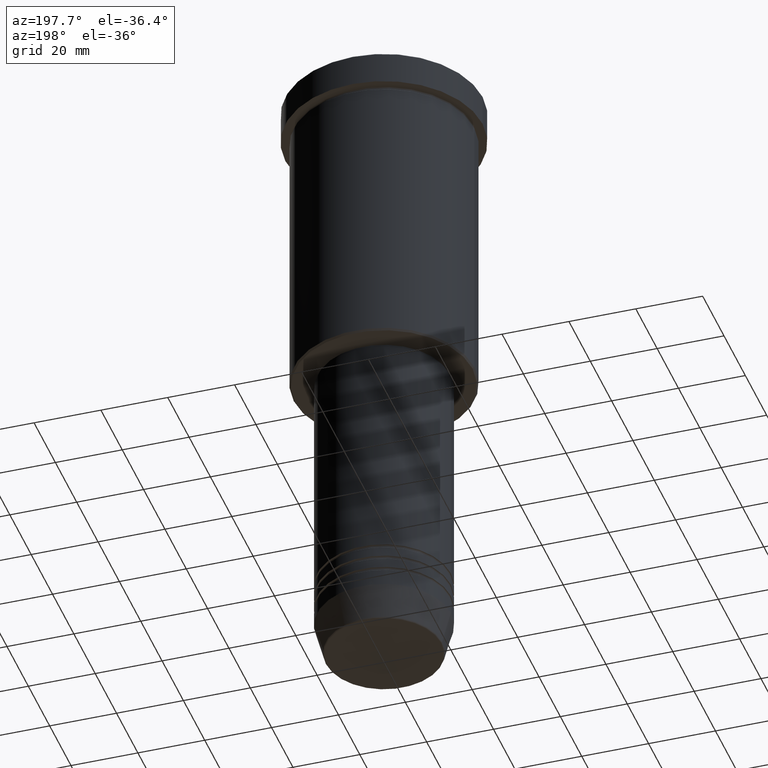
[diagram: clean part render]
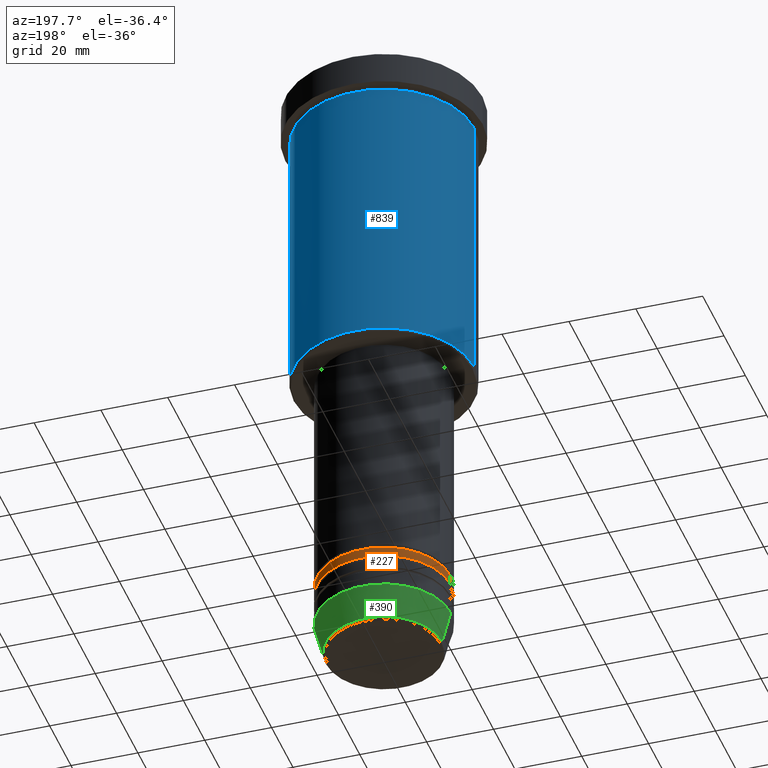
[diagram: same view with three faces highlighted in distinct colors, each labeled with its STEP entity id]
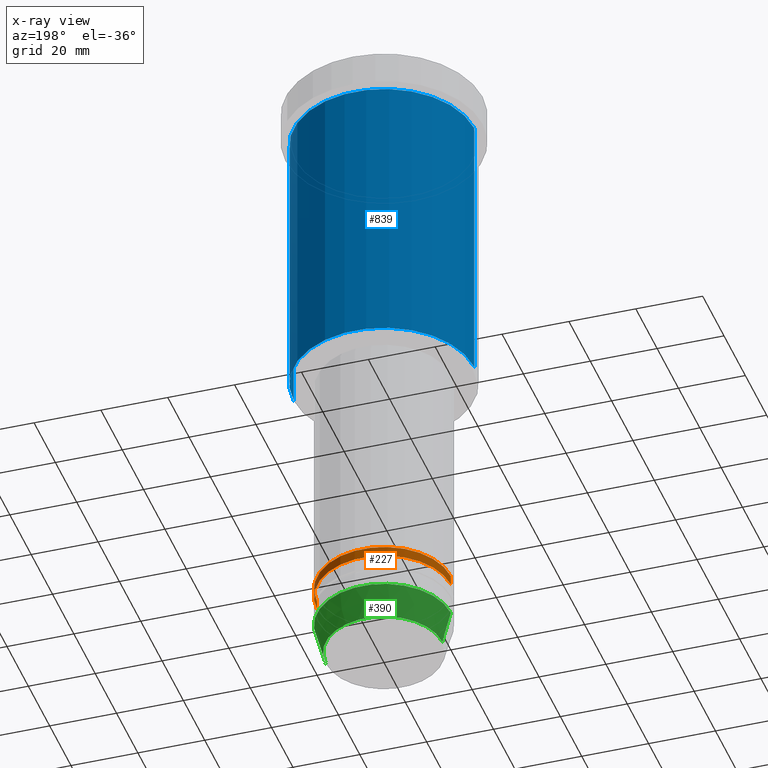
[diagram: x-ray of the same camera — body ghosted, the three highlighted faces saturated]
A machine part, auxiliary view with three faces highlighted in distinct colors.
The next image is the same camera in x-ray (body ghosted, the three faces saturated) — at least one of them is partly hidden behind the body in this view.
Their STEP definitions:

[orange] entity #227 — the highlighted cylindrical surface (partial cylindrical patch) has radius 20 mm, axis along (-0, -0, 1).
#20 = VECTOR ( 'NONE', #460, 1000.000000000000000 ) ;
#52 = CIRCLE ( 'NONE', #1086, 20.00000000000000000 ) ;
#60 = EDGE_CURVE ( 'NONE', #515, #842, #52, .T. ) ;
#149 = VECTOR ( 'NONE', #453, 1000.000000000000000 ) ;
#157 = FACE_OUTER_BOUND ( 'NONE', #1083, .T. ) ;
#190 = CARTESIAN_POINT ( 'NONE',  ( -20.00000000000000000, 2.449293598294706513E-15, -167.9999999999998863 ) ) ;
#227 = ADVANCED_FACE ( 'NONE', ( #157 ), #802, .T. ) ;
#240 = CARTESIAN_POINT ( 'NONE',  ( 0.000000000000000000, 0.000000000000000000, -167.9999999999998863 ) ) ;
#244 = DIRECTION ( 'NONE',  ( 1.000000000000000000, 0.000000000000000000, 0.000000000000000000 ) ) ;
#260 = VERTEX_POINT ( 'NONE', #838 ) ;
#269 = ORIENTED_EDGE ( 'NONE', *, *, #663, .F. ) ;
#280 = AXIS2_PLACEMENT_3D ( 'NONE', #693, #961, #244 ) ;
#349 = VERTEX_POINT ( 'NONE', #641 ) ;
#374 = DIRECTION ( 'NONE',  ( -0.000000000000000000, -0.000000000000000000, 1.000000000000000000 ) ) ;
#379 = DIRECTION ( 'NONE',  ( 1.000000000000000000, 0.000000000000000000, 0.000000000000000000 ) ) ;
#445 = AXIS2_PLACEMENT_3D ( 'NONE', #1168, #374, #379 ) ;
#453 = DIRECTION ( 'NONE',  ( -0.000000000000000000, -0.000000000000000000, 1.000000000000000000 ) ) ;
#460 = DIRECTION ( 'NONE',  ( -0.000000000000000000, -0.000000000000000000, 1.000000000000000000 ) ) ;
#463 = ORIENTED_EDGE ( 'NONE', *, *, #60, .F. ) ;
#515 = VERTEX_POINT ( 'NONE', #519 ) ;
#519 = CARTESIAN_POINT ( 'NONE',  ( 20.00000000000000000, 0.000000000000000000, -167.9999999999998863 ) ) ;
#601 = EDGE_CURVE ( 'NONE', #260, #349, #765, .T. ) ;
#641 = CARTESIAN_POINT ( 'NONE',  ( -20.00000000000000355, 2.449293598294706907E-15, -170.9999999999999432 ) ) ;
#663 = EDGE_CURVE ( 'NONE', #260, #515, #805, .T. ) ;
#681 = DIRECTION ( 'NONE',  ( -0.000000000000000000, -0.000000000000000000, 1.000000000000000000 ) ) ;
#693 = CARTESIAN_POINT ( 'NONE',  ( 0.000000000000000000, 0.000000000000000000, -170.9999999999999432 ) ) ;
#765 = CIRCLE ( 'NONE', #280, 20.00000000000000355 ) ;
#802 = CYLINDRICAL_SURFACE ( 'NONE', #445, 20.00000000000000355 ) ;
#805 = LINE ( 'NONE', #1173, #149 ) ;
#814 = EDGE_CURVE ( 'NONE', #349, #842, #1003, .T. ) ;
#816 = ORIENTED_EDGE ( 'NONE', *, *, #814, .T. ) ;
#838 = CARTESIAN_POINT ( 'NONE',  ( 20.00000000000000355, 0.000000000000000000, -170.9999999999999432 ) ) ;
#842 = VERTEX_POINT ( 'NONE', #190 ) ;
#885 = DIRECTION ( 'NONE',  ( 1.000000000000000000, 0.000000000000000000, 0.000000000000000000 ) ) ;
#961 = DIRECTION ( 'NONE',  ( -0.000000000000000000, -0.000000000000000000, 1.000000000000000000 ) ) ;
#1003 = LINE ( 'NONE', #1099, #20 ) ;
#1070 = ORIENTED_EDGE ( 'NONE', *, *, #601, .T. ) ;
#1083 = EDGE_LOOP ( 'NONE', ( #1070, #816, #463, #269 ) ) ;
#1086 = AXIS2_PLACEMENT_3D ( 'NONE', #240, #681, #885 ) ;
#1099 = CARTESIAN_POINT ( 'NONE',  ( -20.00000000000000355, 2.449293598294706907E-15, 0.000000000000000000 ) ) ;
#1168 = CARTESIAN_POINT ( 'NONE',  ( 0.000000000000000000, 0.000000000000000000, 0.000000000000000000 ) ) ;
#1173 = CARTESIAN_POINT ( 'NONE',  ( 20.00000000000000355, 0.000000000000000000, 0.000000000000000000 ) ) ;

[blue] entity #839 — the highlighted cylindrical surface (partial cylindrical patch) has radius 27 mm, axis along (-0, -0, 1).
#12 = DIRECTION ( 'NONE',  ( -0.000000000000000000, -0.000000000000000000, 1.000000000000000000 ) ) ;
#39 = AXIS2_PLACEMENT_3D ( 'NONE', #408, #306, #773 ) ;
#78 = ORIENTED_EDGE ( 'NONE', *, *, #1102, .F. ) ;
#101 = CARTESIAN_POINT ( 'NONE',  ( -27.00000000000000355, 3.306546357697854128E-15, -10.99999999999999289 ) ) ;
#137 = VERTEX_POINT ( 'NONE', #963 ) ;
#175 = DIRECTION ( 'NONE',  ( 1.000000000000000000, 0.000000000000000000, 0.000000000000000000 ) ) ;
#274 = VERTEX_POINT ( 'NONE', #101 ) ;
#306 = DIRECTION ( 'NONE',  ( -0.000000000000000000, -0.000000000000000000, 1.000000000000000000 ) ) ;
#326 = ORIENTED_EDGE ( 'NONE', *, *, #901, .T. ) ;
#382 = FACE_OUTER_BOUND ( 'NONE', #486, .T. ) ;
#388 = CARTESIAN_POINT ( 'NONE',  ( 27.00000000000000355, 0.000000000000000000, -10.99999999999999289 ) ) ;
#393 = CIRCLE ( 'NONE', #39, 27.00000000000000355 ) ;
#408 = CARTESIAN_POINT ( 'NONE',  ( 0.000000000000000000, 0.000000000000000000, -95.49999999999998579 ) ) ;
#435 = CARTESIAN_POINT ( 'NONE',  ( 0.000000000000000000, 0.000000000000000000, -10.99999999999999289 ) ) ;
#475 = AXIS2_PLACEMENT_3D ( 'NONE', #435, #983, #175 ) ;
#482 = CYLINDRICAL_SURFACE ( 'NONE', #531, 27.00000000000000355 ) ;
#486 = EDGE_LOOP ( 'NONE', ( #684, #326, #78, #980 ) ) ;
#531 = AXIS2_PLACEMENT_3D ( 'NONE', #1017, #580, #1038 ) ;
#580 = DIRECTION ( 'NONE',  ( -0.000000000000000000, -0.000000000000000000, 1.000000000000000000 ) ) ;
#611 = VECTOR ( 'NONE', #12, 1000.000000000000000 ) ;
#626 = CARTESIAN_POINT ( 'NONE',  ( 27.00000000000000355, 0.000000000000000000, 0.000000000000000000 ) ) ;
#639 = LINE ( 'NONE', #626, #897 ) ;
#655 = EDGE_CURVE ( 'NONE', #1004, #858, #639, .T. ) ;
#673 = CARTESIAN_POINT ( 'NONE',  ( -27.00000000000000355, 3.306546357697854128E-15, 0.000000000000000000 ) ) ;
#684 = ORIENTED_EDGE ( 'NONE', *, *, #948, .T. ) ;
#701 = CARTESIAN_POINT ( 'NONE',  ( 27.00000000000000355, 0.000000000000000000, -95.49999999999998579 ) ) ;
#707 = CIRCLE ( 'NONE', #475, 27.00000000000000355 ) ;
#773 = DIRECTION ( 'NONE',  ( -1.000000000000000000, 0.000000000000000000, 0.000000000000000000 ) ) ;
#815 = DIRECTION ( 'NONE',  ( -0.000000000000000000, -0.000000000000000000, 1.000000000000000000 ) ) ;
#834 = LINE ( 'NONE', #673, #611 ) ;
#839 = ADVANCED_FACE ( 'NONE', ( #382 ), #482, .T. ) ;
#858 = VERTEX_POINT ( 'NONE', #388 ) ;
#897 = VECTOR ( 'NONE', #815, 1000.000000000000000 ) ;
#901 = EDGE_CURVE ( 'NONE', #137, #274, #834, .T. ) ;
#948 = EDGE_CURVE ( 'NONE', #1004, #137, #393, .T. ) ;
#963 = CARTESIAN_POINT ( 'NONE',  ( -27.00000000000000355, 3.306546357697854128E-15, -95.49999999999998579 ) ) ;
#980 = ORIENTED_EDGE ( 'NONE', *, *, #655, .F. ) ;
#983 = DIRECTION ( 'NONE',  ( -0.000000000000000000, -0.000000000000000000, 1.000000000000000000 ) ) ;
#1004 = VERTEX_POINT ( 'NONE', #701 ) ;
#1017 = CARTESIAN_POINT ( 'NONE',  ( 0.000000000000000000, 0.000000000000000000, 0.000000000000000000 ) ) ;
#1038 = DIRECTION ( 'NONE',  ( 1.000000000000000000, 0.000000000000000000, 0.000000000000000000 ) ) ;
#1102 = EDGE_CURVE ( 'NONE', #858, #274, #707, .T. ) ;

[green] entity #390 — the highlighted conical surface has half-angle 15 deg.
#24 = CARTESIAN_POINT ( 'NONE',  ( 0.000000000000000000, 0.000000000000000000, -181.0000000000000000 ) ) ;
#43 = CARTESIAN_POINT ( 'NONE',  ( 0.000000000000000000, 0.000000000000000000, -190.6294095225512422 ) ) ;
#68 = CARTESIAN_POINT ( 'NONE',  ( 20.00000000000000000, 0.000000000000000000, -181.0000000000000000 ) ) ;
#90 = VECTOR ( 'NONE', #933, 1000.000000000000114 ) ;
#113 = AXIS2_PLACEMENT_3D ( 'NONE', #24, #860, #192 ) ;
#120 = CARTESIAN_POINT ( 'NONE',  ( -20.00000000000000000, 2.449293598294706513E-15, -181.0000000000000000 ) ) ;
#146 = DIRECTION ( 'NONE',  ( 1.000000000000000000, 0.000000000000000000, 0.000000000000000000 ) ) ;
#177 = ORIENTED_EDGE ( 'NONE', *, *, #1034, .T. ) ;
#192 = DIRECTION ( 'NONE',  ( 1.000000000000000000, 0.000000000000000000, 0.000000000000000000 ) ) ;
#193 = VERTEX_POINT ( 'NONE', #266 ) ;
#194 = LINE ( 'NONE', #120, #90 ) ;
#249 = EDGE_CURVE ( 'NONE', #423, #657, #847, .T. ) ;
#251 = EDGE_CURVE ( 'NONE', #193, #378, #194, .T. ) ;
#265 = CIRCLE ( 'NONE', #628, 17.41980749484382329 ) ;
#266 = CARTESIAN_POINT ( 'NONE',  ( -17.41980749484382329, 2.291302373663531915E-15, -190.6294095225512422 ) ) ;
#378 = VERTEX_POINT ( 'NONE', #566 ) ;
#384 = EDGE_CURVE ( 'NONE', #657, #378, #914, .T. ) ;
#390 = ADVANCED_FACE ( 'NONE', ( #1045 ), #720, .T. ) ;
#423 = VERTEX_POINT ( 'NONE', #674 ) ;
#433 = EDGE_LOOP ( 'NONE', ( #177, #835, #694, #832 ) ) ;
#471 = AXIS2_PLACEMENT_3D ( 'NONE', #1116, #857, #572 ) ;
#562 = CARTESIAN_POINT ( 'NONE',  ( 20.00000000000000000, 0.000000000000000000, -181.0000000000000000 ) ) ;
#566 = CARTESIAN_POINT ( 'NONE',  ( -20.00000000000000000, 2.449293598294706513E-15, -181.0000000000000000 ) ) ;
#572 = DIRECTION ( 'NONE',  ( 1.000000000000000000, 0.000000000000000000, 0.000000000000000000 ) ) ;
#628 = AXIS2_PLACEMENT_3D ( 'NONE', #43, #865, #146 ) ;
#657 = VERTEX_POINT ( 'NONE', #68 ) ;
#674 = CARTESIAN_POINT ( 'NONE',  ( 17.41980749484382329, 0.000000000000000000, -190.6294095225512422 ) ) ;
#694 = ORIENTED_EDGE ( 'NONE', *, *, #384, .F. ) ;
#720 = CONICAL_SURFACE ( 'NONE', #113, 20.00000000000000000, 0.2617993877991499074 ) ;
#832 = ORIENTED_EDGE ( 'NONE', *, *, #249, .F. ) ;
#835 = ORIENTED_EDGE ( 'NONE', *, *, #251, .T. ) ;
#840 = VECTOR ( 'NONE', #1021, 1000.000000000000114 ) ;
#847 = LINE ( 'NONE', #562, #840 ) ;
#857 = DIRECTION ( 'NONE',  ( -0.000000000000000000, -0.000000000000000000, 1.000000000000000000 ) ) ;
#860 = DIRECTION ( 'NONE',  ( -0.000000000000000000, -0.000000000000000000, 1.000000000000000000 ) ) ;
#865 = DIRECTION ( 'NONE',  ( -0.000000000000000000, -0.000000000000000000, 1.000000000000000000 ) ) ;
#914 = CIRCLE ( 'NONE', #471, 20.00000000000000000 ) ;
#933 = DIRECTION ( 'NONE',  ( -0.2588190451025211836, 3.169619151431770488E-17, 0.9659258262890680902 ) ) ;
#1021 = DIRECTION ( 'NONE',  ( 0.2588190451025211836, 0.000000000000000000, 0.9659258262890680902 ) ) ;
#1034 = EDGE_CURVE ( 'NONE', #423, #193, #265, .T. ) ;
#1045 = FACE_OUTER_BOUND ( 'NONE', #433, .T. ) ;
#1116 = CARTESIAN_POINT ( 'NONE',  ( 0.000000000000000000, 0.000000000000000000, -181.0000000000000000 ) ) ;